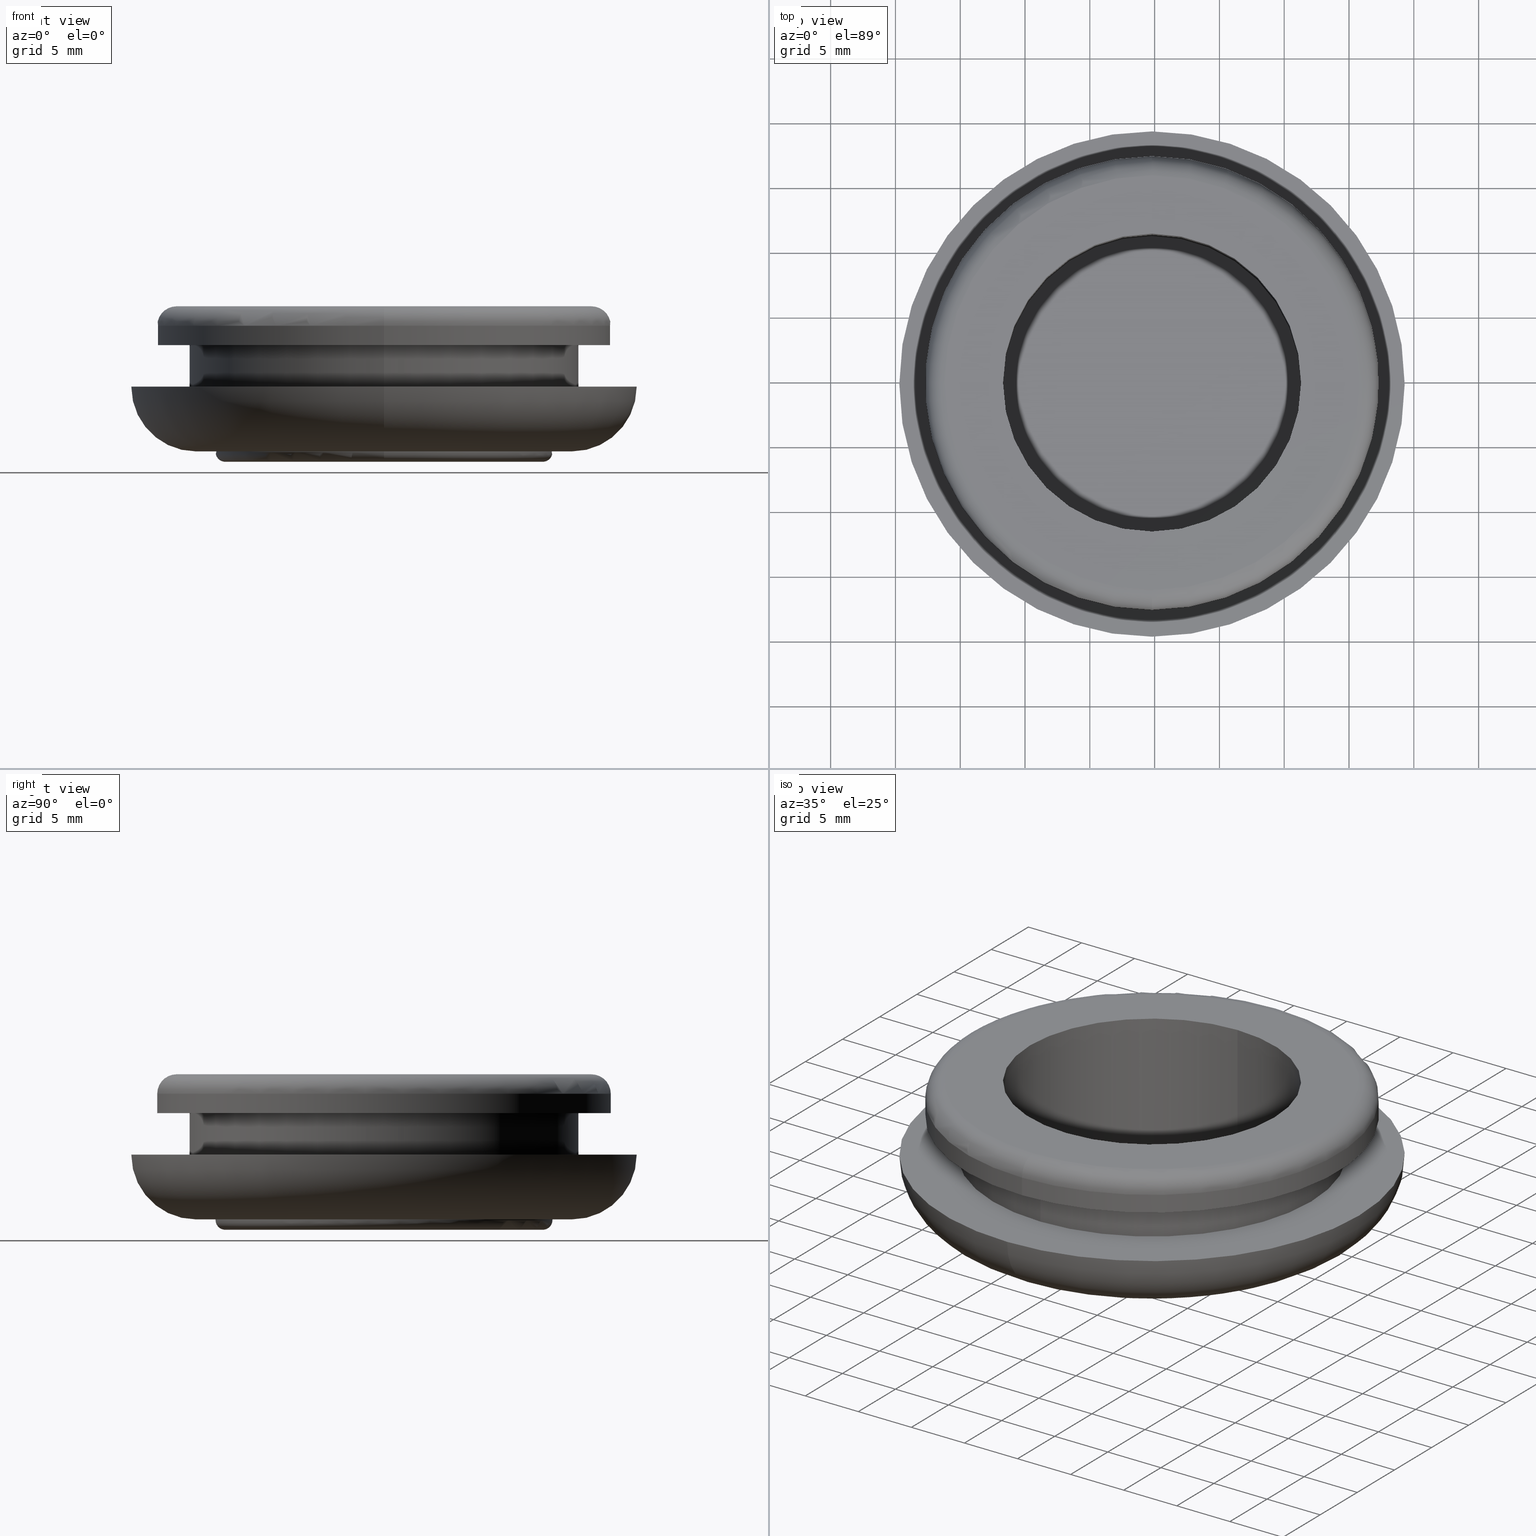
[diagram: canonical four-view strip — front | top / right | iso, engineering-drawing reading convention]
A machine part, canonical four-view strip (front | top / right | iso — engineering-drawing reading convention). The complete STEP part file that produces these views, byte-faithful:
ISO-10303-21;
HEADER;
FILE_DESCRIPTION (( 'STEP AP214' ),
    '1' );
FILE_NAME ('TM_MG_8.STEP',
    '2015-05-22T02:50:23',
    ( '' ),
    ( '' ),
    'SwSTEP 2.0',
    'SolidWorks 2015',
    '' );
FILE_SCHEMA (( 'AUTOMOTIVE_DESIGN' ));
ENDSEC;

DATA;
#1 = DIRECTION ( 'NONE',  ( 0.0000000000000000000, 0.0000000000000000000, -1.000000000000000000 ) ) ;
#2 = EDGE_CURVE ( 'NONE', #267, #573, #291, .T. ) ;
#3 = AXIS2_PLACEMENT_3D ( 'NONE', #133, #425, #193 ) ;
#4 = CIRCLE ( 'NONE', #501, 0.7500000000000006700 ) ;
#5 = ADVANCED_FACE ( 'NONE', ( #280, #88 ), #552, .T. ) ;
#6 = ORIENTED_EDGE ( 'NONE', *, *, #78, .T. ) ;
#7 = EDGE_CURVE ( 'NONE', #127, #531, #227, .T. ) ;
#8 = DIRECTION ( 'NONE',  ( 0.0000000000000000000, 0.0000000000000000000, -1.000000000000000000 ) ) ;
#9 = EDGE_CURVE ( 'NONE', #500, #596, #121, .T. ) ;
#10 = ADVANCED_FACE ( 'NONE', ( #368 ), #350, .T. ) ;
#11 = CARTESIAN_POINT ( 'NONE',  ( 0.0000000000000000000, 1.499999999999996700, -16.00000000000000000 ) ) ;
#12 = CARTESIAN_POINT ( 'NONE',  ( 0.0000000000000000000, 11.19999999999999800, -14.50000000000000000 ) ) ;
#13 = DIRECTION ( 'NONE',  ( 0.0000000000000000000, -1.000000000000000000, 0.0000000000000000000 ) ) ;
#14 = EDGE_CURVE ( 'NONE', #172, #536, #213, .T. ) ;
#15 = VECTOR ( 'NONE', #414, 1000.000000000000000 ) ;
#16 = CARTESIAN_POINT ( 'NONE',  ( 0.0000000000000000000, 11.25000000000000000, 0.0000000000000000000 ) ) ;
#17 = ORIENTED_EDGE ( 'NONE', *, *, #294, .F. ) ;
#18 = SHAPE_REPRESENTATION ( 'grommet', ( #511 ), #648 ) ;
#19 = EDGE_CURVE ( 'NONE', #353, #331, #603, .T. ) ;
#20 = AXIS2_PLACEMENT_3D ( 'NONE', #327, #370, #507 ) ;
#21 = DIRECTION ( 'NONE',  ( 0.0000000000000000000, -1.000000000000000000, 0.0000000000000000000 ) ) ;
#22 = ADVANCED_FACE ( 'NONE', ( #587, #74 ), #525, .T. ) ;
#23 = APPLICATION_CONTEXT ( 'automotive_design' ) ;
#24 = CYLINDRICAL_SURFACE ( 'NONE', #316, 11.50000000000000000 ) ;
#25 = EDGE_CURVE ( 'NONE', #338, #122, #198, .T. ) ;
#26 = EDGE_LOOP ( 'NONE', ( #153, #646 ) ) ;
#27 = UNCERTAINTY_MEASURE_WITH_UNIT (LENGTH_MEASURE( 1.000000000000000100E-005 ), #31, 'distance_accuracy_value', 'NONE');
#28 = EDGE_CURVE ( 'NONE', #122, #441, #456, .T. ) ;
#29 = STYLED_ITEM ( 'NONE', ( #628 ), #595 ) ;
#30 = PRODUCT_DEFINITION_CONTEXT ( 'detailed design', #189, 'design' ) ;
#31 =( LENGTH_UNIT ( ) NAMED_UNIT ( * ) SI_UNIT ( .MILLI., .METRE. ) );
#32 = CARTESIAN_POINT ( 'NONE',  ( 0.0000000000000000000, 12.69999999999999900, -13.00000000000000000 ) ) ;
#33 = SHAPE_DEFINITION_REPRESENTATION ( #629, #18 ) ;
#34 = FACE_OUTER_BOUND ( 'NONE', #26, .T. ) ;
#35 = EDGE_CURVE ( 'NONE', #199, #128, #337, .T. ) ;
#36 = ORIENTED_EDGE ( 'NONE', *, *, #39, .T. ) ;
#37 = AXIS2_PLACEMENT_3D ( 'NONE', #647, #569, #490 ) ;
#38 = CARTESIAN_POINT ( 'NONE',  ( 0.0000000000000000000, 0.0000000000000000000, 0.0000000000000000000 ) ) ;
#39 = EDGE_CURVE ( 'NONE', #359, #298, #55, .T. ) ;
#40 = SURFACE_SIDE_STYLE ('',( #117 ) ) ;
#41 = TOROIDAL_SURFACE ( 'NONE', #612, 14.50000000000000000, 4.999999999999999100 ) ;
#42 = CIRCLE ( 'NONE', #282, 1.500000000000001300 ) ;
#43 = EDGE_LOOP ( 'NONE', ( #192, #371, #315, #388 ) ) ;
#44 = EDGE_CURVE ( 'NONE', #128, #199, #449, .T. ) ;
#45 = AXIS2_PLACEMENT_3D ( 'NONE', #164, #150, #148 ) ;
#46 = EDGE_CURVE ( 'NONE', #596, #531, #572, .T. ) ;
#47 = PLANE ( 'NONE',  #434 ) ;
#48 = PLANE ( 'NONE',  #356 ) ;
#49 = ORIENTED_EDGE ( 'NONE', *, *, #81, .F. ) ;
#50 = PLANE ( 'NONE',  #197 ) ;
#51 = EDGE_CURVE ( 'NONE', #338, #460, #322, .T. ) ;
#52 = DIRECTION ( 'NONE',  ( 0.0000000000000000000, 0.0000000000000000000, 1.000000000000000000 ) ) ;
#53 = VECTOR ( 'NONE', #211, 1000.000000000000000 ) ;
#54 = ADVANCED_FACE ( 'NONE', ( #185 ), #24, .F. ) ;
#55 = CIRCLE ( 'NONE', #144, 17.50000000000000000 ) ;
#56 = VERTEX_POINT ( 'NONE', #57 ) ;
#57 = CARTESIAN_POINT ( 'NONE',  ( 0.0000000000000000000, 2.999999999999999100, -15.00000000000000000 ) ) ;
#58 = DIRECTION ( 'NONE',  ( 0.0000000000000000000, -1.000000000000000000, 0.0000000000000000000 ) ) ;
#59 = EDGE_CURVE ( 'NONE', #199, #353, #42, .T. ) ;
#60 = UNCERTAINTY_MEASURE_WITH_UNIT (LENGTH_MEASURE( 1.000000000000000100E-005 ), #203, 'distance_accuracy_value', 'NONE');
#61 = ORIENTED_EDGE ( 'NONE', *, *, #2, .F. ) ;
#62 =( NAMED_UNIT ( * ) PLANE_ANGLE_UNIT ( ) SI_UNIT ( $, .RADIAN. ) );
#63 = PRODUCT_DEFINITION_CONTEXT ( 'detailed design', #202, 'design' ) ;
#64 = EDGE_CURVE ( 'NONE', #573, #267, #304, .T. ) ;
#65 = PRODUCT ( 'grommet', 'grommet', '', ( #238 ) ) ;
#66 = PRESENTATION_LAYER_ASSIGNMENT (  '', '', ( #29 ) ) ;
#67 = EDGE_LOOP ( 'NONE', ( #413, #483, #562, #551 ) ) ;
#68 = VERTEX_POINT ( 'NONE', #461 ) ;
#69 = AXIS2_PLACEMENT_3D ( 'NONE', #218, #487, #52 ) ;
#70 = CARTESIAN_POINT ( 'NONE',  ( 0.0000000000000000000, 2.999999999999999100, -17.50000000000000000 ) ) ;
#71 =( NAMED_UNIT ( * ) SI_UNIT ( $, .STERADIAN. ) SOLID_ANGLE_UNIT ( ) );
#72 = EDGE_CURVE ( 'NONE', #127, #500, #435, .T. ) ;
#73 = TOROIDAL_SURFACE ( 'NONE', #217, 12.24999999999999600, 0.7499999999999997800 ) ;
#74 = FACE_OUTER_BOUND ( 'NONE', #351, .T. ) ;
#75 = ORIENTED_EDGE ( 'NONE', *, *, #157, .T. ) ;
#76 = CARTESIAN_POINT ( 'NONE',  ( 1.775737858763662000E-015, 6.200000000000000200, 14.50000000000000000 ) ) ;
#77 = DIRECTION ( 'NONE',  ( 0.0000000000000000000, -1.000000000000000000, 0.0000000000000000000 ) ) ;
#78 = EDGE_CURVE ( 'NONE', #406, #460, #171, .T. ) ;
#79 = AXIS2_PLACEMENT_3D ( 'NONE', #194, #166, #292 ) ;
#80 = PRESENTATION_STYLE_ASSIGNMENT (( #634 ) ) ;
#81 = EDGE_CURVE ( 'NONE', #128, #331, #424, .T. ) ;
#82 = ORIENTED_EDGE ( 'NONE', *, *, #46, .T. ) ;
#83 = CARTESIAN_POINT ( 'NONE',  ( 0.0000000000000000000, 10.69999999999999900, -11.50000000000000000 ) ) ;
#84 = DIRECTION ( 'NONE',  ( 0.0000000000000000000, 0.0000000000000000000, 1.000000000000000000 ) ) ;
#85 = DIRECTION ( 'NONE',  ( 0.0000000000000000000, 0.0000000000000000000, -1.000000000000000000 ) ) ;
#86 = FACE_OUTER_BOUND ( 'NONE', #67, .T. ) ;
#87 = EDGE_CURVE ( 'NONE', #56, #68, #534, .T. ) ;
#88 = FACE_BOUND ( 'NONE', #265, .T. ) ;
#89 = ORIENTED_EDGE ( 'NONE', *, *, #377, .T. ) ;
#90 = AXIS2_PLACEMENT_3D ( 'NONE', #313, #342, #499 ) ;
#91 = DIRECTION ( 'NONE',  ( 0.0000000000000000000, -1.000000000000000000, 0.0000000000000000000 ) ) ;
#92 = ORIENTED_EDGE ( 'NONE', *, *, #191, .T. ) ;
#93 = CARTESIAN_POINT ( 'NONE',  ( 0.0000000000000000000, 1.500000000000008200, 0.0000000000000000000 ) ) ;
#94 =( LENGTH_UNIT ( ) NAMED_UNIT ( * ) SI_UNIT ( .MILLI., .METRE. ) );
#95 = DIRECTION ( 'NONE',  ( 0.0000000000000000000, -1.000000000000000000, 0.0000000000000000000 ) ) ;
#96 = TOROIDAL_SURFACE ( 'NONE', #131, 16.00000000000000000, 1.500000000000000400 ) ;
#97 = ORIENTED_EDGE ( 'NONE', *, *, #39, .F. ) ;
#98 = EDGE_CURVE ( 'NONE', #430, #548, #288, .T. ) ;
#99 = DIRECTION ( 'NONE',  ( 0.0000000000000000000, -1.000000000000000000, 0.0000000000000000000 ) ) ;
#100 = MECHANICAL_DESIGN_GEOMETRIC_PRESENTATION_REPRESENTATION (  '', ( #29 ), #138 ) ;
#101 = CARTESIAN_POINT ( 'NONE',  ( 0.0000000000000000000, 11.25000000000000000, 0.0000000000000000000 ) ) ;
#102 = DIRECTION ( 'NONE',  ( 0.0000000000000000000, 0.0000000000000000000, -1.000000000000000000 ) ) ;
#103 = AXIS2_PLACEMENT_3D ( 'NONE', #431, #556, #564 ) ;
#104 = DIRECTION ( 'NONE',  ( 0.0000000000000000000, 0.0000000000000000000, -1.000000000000000000 ) ) ;
#105 = CIRCLE ( 'NONE', #187, 13.00000000000000000 ) ;
#106 = APPLICATION_PROTOCOL_DEFINITION ( 'draft international standard', 'automotive_design', 1998, #189 ) ;
#107 = EDGE_LOOP ( 'NONE', ( #438, #92, #328, #620 ) ) ;
#108 = CARTESIAN_POINT ( 'NONE',  ( 1.408343819019456200E-015, 10.69999999999999900, 11.50000000000000000 ) ) ;
#109 = ORIENTED_EDGE ( 'NONE', *, *, #25, .T. ) ;
#110 = DIRECTION ( 'NONE',  ( 0.0000000000000000000, 0.0000000000000000000, -1.000000000000000000 ) ) ;
#111 = DIRECTION ( 'NONE',  ( 1.000000000000000000, 0.0000000000000000000, 0.0000000000000000000 ) ) ;
#112 = CARTESIAN_POINT ( 'NONE',  ( 0.0000000000000000000, 6.200000000000000200, -14.50000000000000000 ) ) ;
#113 = ORIENTED_EDGE ( 'NONE', *, *, #46, .F. ) ;
#114 = CARTESIAN_POINT ( 'NONE',  ( 0.0000000000000000000, 12.69999999999999900, 0.0000000000000000000 ) ) ;
#115 = AXIS2_PLACEMENT_3D ( 'NONE', #114, #374, #200 ) ;
#116 = CARTESIAN_POINT ( 'NONE',  ( 0.0000000000000000000, 12.69999999999999900, 0.0000000000000000000 ) ) ;
#117 = SURFACE_STYLE_FILL_AREA ( #401 ) ;
#118 = CYLINDRICAL_SURFACE ( 'NONE', #90, 11.49999999999999800 ) ;
#119 = ORIENTED_EDGE ( 'NONE', *, *, #377, .F. ) ;
#120 = EDGE_CURVE ( 'NONE', #338, #493, #4, .T. ) ;
#121 = LINE ( 'NONE', #318, #472 ) ;
#122 = VERTEX_POINT ( 'NONE', #528 ) ;
#123 = DIRECTION ( 'NONE',  ( 0.0000000000000000000, -1.000000000000000000, 0.0000000000000000000 ) ) ;
#124 = DIRECTION ( 'NONE',  ( 0.0000000000000000000, -1.000000000000000000, 0.0000000000000000000 ) ) ;
#125 = DIRECTION ( 'NONE',  ( 0.0000000000000000000, -1.000000000000000000, 0.0000000000000000000 ) ) ;
#126 = TOROIDAL_SURFACE ( 'NONE', #254, 12.24999999999999600, 0.7499999999999997800 ) ;
#127 = VERTEX_POINT ( 'NONE', #108 ) ;
#128 = VERTEX_POINT ( 'NONE', #469 ) ;
#129 = CARTESIAN_POINT ( 'NONE',  ( 2.081899558550500300E-015, 11.19999999999999800, 14.50000000000000000 ) ) ;
#130 = ORIENTED_EDGE ( 'NONE', *, *, #523, .T. ) ;
#131 = AXIS2_PLACEMENT_3D ( 'NONE', #383, #332, #1 ) ;
#132 = CARTESIAN_POINT ( 'NONE',  ( 1.408343819019456200E-015, -1.734723475976807100E-015, 11.50000000000000000 ) ) ;
#133 = CARTESIAN_POINT ( 'NONE',  ( 0.0000000000000000000, 6.200000000000000200, 0.0000000000000000000 ) ) ;
#134 = CIRCLE ( 'NONE', #570, 11.50000000000000000 ) ;
#135 = ORIENTED_EDGE ( 'NONE', *, *, #290, .F. ) ;
#136 = CARTESIAN_POINT ( 'NONE',  ( 0.0000000000000000000, 11.25000000000000000, -13.00000000000000000 ) ) ;
#137 = ORIENTED_EDGE ( 'NONE', *, *, #98, .F. ) ;
#138 =( GEOMETRIC_REPRESENTATION_CONTEXT ( 3 ) GLOBAL_UNCERTAINTY_ASSIGNED_CONTEXT ( ( #642 ) ) GLOBAL_UNIT_ASSIGNED_CONTEXT ( ( #409, #594, #631 ) ) REPRESENTATION_CONTEXT ( 'NONE', 'WORKASPACE' ) );
#139 = ADVANCED_FACE ( 'NONE', ( #410, #152 ), #544, .T. ) ;
#140 = DIRECTION ( 'NONE',  ( 0.0000000000000000000, 0.0000000000000000000, -1.000000000000000000 ) ) ;
#141 = APPLICATION_CONTEXT ( 'automotive_design' ) ;
#142 = EDGE_CURVE ( 'NONE', #460, #406, #134, .T. ) ;
#143 = CYLINDRICAL_SURFACE ( 'NONE', #563, 17.50000000000000000 ) ;
#144 = AXIS2_PLACEMENT_3D ( 'NONE', #423, #575, #516 ) ;
#145 = ORIENTED_EDGE ( 'NONE', *, *, #120, .T. ) ;
#146 = EDGE_CURVE ( 'NONE', #548, #430, #271, .T. ) ;
#147 = APPLICATION_PROTOCOL_DEFINITION ( 'draft international standard', 'automotive_design', 1998, #141 ) ;
#148 = DIRECTION ( 'NONE',  ( 0.0000000000000000000, 0.0000000000000000000, -1.000000000000000000 ) ) ;
#149 = CARTESIAN_POINT ( 'NONE',  ( 0.0000000000000000000, 10.69999999999999900, 0.0000000000000000000 ) ) ;
#150 = DIRECTION ( 'NONE',  ( 0.0000000000000000000, -1.000000000000000000, 0.0000000000000000000 ) ) ;
#151 = DIRECTION ( 'NONE',  ( 0.0000000000000000000, 0.0000000000000000000, -1.000000000000000000 ) ) ;
#152 = FACE_OUTER_BOUND ( 'NONE', #639, .T. ) ;
#153 = ORIENTED_EDGE ( 'NONE', *, *, #78, .F. ) ;
#154 = AXIS2_PLACEMENT_3D ( 'NONE', #561, #621, #555 ) ;
#155 = ADVANCED_FACE ( 'NONE', ( #519 ), #118, .F. ) ;
#156 = CARTESIAN_POINT ( 'NONE',  ( 0.0000000000000000000, 12.69999999999999900, 0.0000000000000000000 ) ) ;
#157 = EDGE_CURVE ( 'NONE', #441, #267, #508, .T. ) ;
#158 = CARTESIAN_POINT ( 'NONE',  ( 0.0000000000000000000, 12.69999999999999900, -11.49999999999999800 ) ) ;
#159 = CARTESIAN_POINT ( 'NONE',  ( 1.836970198721029600E-015, 12.69999999999999900, 15.00000000000000000 ) ) ;
#160 = CARTESIAN_POINT ( 'NONE',  ( 1.592040838891559100E-015, 11.25000000000000000, 13.00000000000000000 ) ) ;
#161 = CONTEXT_DEPENDENT_SHAPE_REPRESENTATION ( #398, #382 ) ;
#162 = CYLINDRICAL_SURFACE ( 'NONE', #489, 13.00000000000000000 ) ;
#163 = ORIENTED_EDGE ( 'NONE', *, *, #98, .T. ) ;
#164 = CARTESIAN_POINT ( 'NONE',  ( 0.0000000000000000000, 2.999999999999999100, 0.0000000000000000000 ) ) ;
#165 = DIRECTION ( 'NONE',  ( 0.0000000000000000000, -1.000000000000000000, 0.0000000000000000000 ) ) ;
#166 = DIRECTION ( 'NONE',  ( 0.0000000000000000000, -1.000000000000000000, 0.0000000000000000000 ) ) ;
#167 = ORIENTED_EDGE ( 'NONE', *, *, #19, .T. ) ;
#168 = AXIS2_PLACEMENT_3D ( 'NONE', #399, #13, #110 ) ;
#169 = CARTESIAN_POINT ( 'NONE',  ( 0.0000000000000000000, 1.499999999999996700, 0.0000000000000000000 ) ) ;
#170 = CYLINDRICAL_SURFACE ( 'NONE', #576, 13.00000000000000000 ) ;
#171 = CIRCLE ( 'NONE', #386, 11.50000000000000000 ) ;
#172 = VERTEX_POINT ( 'NONE', #354 ) ;
#173 = CARTESIAN_POINT ( 'NONE',  ( 2.051283388571816100E-015, -3.469446951953614200E-015, 15.99999999999998900 ) ) ;
#174 = FILL_AREA_STYLE_COLOUR ( '', #253 ) ;
#175 = SHAPE_DEFINITION_REPRESENTATION ( #357, #249 ) ;
#176 = VECTOR ( 'NONE', #223, 1000.000000000000000 ) ;
#177 = EDGE_LOOP ( 'NONE', ( #317, #179, #417, #473 ) ) ;
#178 = AXIS2_PLACEMENT_3D ( 'NONE', #93, #466, #521 ) ;
#179 = ORIENTED_EDGE ( 'NONE', *, *, #464, .T. ) ;
#180 = ORIENTED_EDGE ( 'NONE', *, *, #330, .F. ) ;
#181 = ADVANCED_FACE ( 'NONE', ( #255 ), #630, .T. ) ;
#182 = EDGE_CURVE ( 'NONE', #298, #199, #378, .T. ) ;
#183 =( NAMED_UNIT ( * ) PLANE_ANGLE_UNIT ( ) SI_UNIT ( $, .RADIAN. ) );
#184 = FACE_OUTER_BOUND ( 'NONE', #228, .T. ) ;
#185 = FACE_OUTER_BOUND ( 'NONE', #607, .T. ) ;
#186 = ORIENTED_EDGE ( 'NONE', *, *, #361, .F. ) ;
#187 = AXIS2_PLACEMENT_3D ( 'NONE', #615, #524, #231 ) ;
#188 = ADVANCED_FACE ( 'NONE', ( #645 ), #96, .T. ) ;
#189 = APPLICATION_CONTEXT ( 'automotive_design' ) ;
#190 = ADVANCED_FACE ( 'NONE', ( #358 ), #50, .T. ) ;
#191 = EDGE_CURVE ( 'NONE', #298, #359, #492, .T. ) ;
#192 = ORIENTED_EDGE ( 'NONE', *, *, #59, .F. ) ;
#193 = DIRECTION ( 'NONE',  ( 0.0000000000000000000, 0.0000000000000000000, -1.000000000000000000 ) ) ;
#194 = CARTESIAN_POINT ( 'NONE',  ( 0.0000000000000000000, -1.734723475976807100E-015, 0.0000000000000000000 ) ) ;
#195 = CARTESIAN_POINT ( 'NONE',  ( 1.592040838891559100E-015, 11.19999999999999900, 13.00000000000000000 ) ) ;
#196 = LINE ( 'NONE', #159, #585 ) ;
#197 = AXIS2_PLACEMENT_3D ( 'NONE', #372, #95, #560 ) ;
#198 = CIRCLE ( 'NONE', #650, 11.49999999999999600 ) ;
#199 = VERTEX_POINT ( 'NONE', #609 ) ;
#200 = DIRECTION ( 'NONE',  ( 0.0000000000000000000, 0.0000000000000000000, -1.000000000000000000 ) ) ;
#201 = DIRECTION ( 'NONE',  ( 0.0000000000000000000, 0.0000000000000000000, -1.000000000000000000 ) ) ;
#202 = APPLICATION_CONTEXT ( 'automotive_design' ) ;
#203 =( LENGTH_UNIT ( ) NAMED_UNIT ( * ) SI_UNIT ( .MILLI., .METRE. ) );
#204 = DIRECTION ( 'NONE',  ( 0.0000000000000000000, -1.000000000000000000, 0.0000000000000000000 ) ) ;
#205 = EDGE_LOOP ( 'NONE', ( #632, #145, #119, #486 ) ) ;
#206 = ORIENTED_EDGE ( 'NONE', *, *, #2, .T. ) ;
#207 = EDGE_LOOP ( 'NONE', ( #452, #505, #411, #17 ) ) ;
#208 = DIRECTION ( 'NONE',  ( 1.000000000000000000, 0.0000000000000000000, 0.0000000000000000000 ) ) ;
#209 = AXIS2_PLACEMENT_3D ( 'NONE', #583, #236, #362 ) ;
#210 = CARTESIAN_POINT ( 'NONE',  ( 0.0000000000000000000, 0.0000000000000000000, 0.0000000000000000000 ) ) ;
#211 = DIRECTION ( 'NONE',  ( 0.0000000000000000000, -1.000000000000000000, 0.0000000000000000000 ) ) ;
#212 = FACE_OUTER_BOUND ( 'NONE', #177, .T. ) ;
#213 = CIRCLE ( 'NONE', #484, 15.00000000000000000 ) ;
#214 = DIRECTION ( 'NONE',  ( 0.0000000000000000000, 0.0000000000000000000, 1.000000000000000000 ) ) ;
#215 = MANIFOLD_SOLID_BREP ( '��]1', #588 ) ;
#216 = ORIENTED_EDGE ( 'NONE', *, *, #290, .T. ) ;
#217 = AXIS2_PLACEMENT_3D ( 'NONE', #101, #99, #287 ) ;
#218 = CARTESIAN_POINT ( 'NONE',  ( 0.0000000000000000000, 11.25000000000000000, -12.24999999999999600 ) ) ;
#219 = CIRCLE ( 'NONE', #459, 4.999999999999999100 ) ;
#220 = ORIENTED_EDGE ( 'NONE', *, *, #633, .T. ) ;
#221 = EDGE_CURVE ( 'NONE', #172, #56, #312, .T. ) ;
#222 = ORIENTED_EDGE ( 'NONE', *, *, #191, .F. ) ;
#223 = DIRECTION ( 'NONE',  ( 0.0000000000000000000, -1.000000000000000000, 0.0000000000000000000 ) ) ;
#224 = DIRECTION ( 'NONE',  ( 0.0000000000000000000, 0.0000000000000000000, 1.000000000000000000 ) ) ;
#225 = CARTESIAN_POINT ( 'NONE',  ( 11.50000000000000000, -2.573917133304267300E-015, 0.0000000000000000000 ) ) ;
#226 = FACE_OUTER_BOUND ( 'NONE', #400, .T. ) ;
#227 = LINE ( 'NONE', #251, #296 ) ;
#228 = EDGE_LOOP ( 'NONE', ( #355, #163, #324, #135 ) ) ;
#229 = STYLED_ITEM ( 'NONE', ( #80 ), #215 ) ;
#230 = ORIENTED_EDGE ( 'NONE', *, *, #120, .F. ) ;
#231 = DIRECTION ( 'NONE',  ( 0.0000000000000000000, 0.0000000000000000000, -1.000000000000000000 ) ) ;
#232 = ADVANCED_FACE ( 'NONE', ( #34 ), #47, .T. ) ;
#233 = CARTESIAN_POINT ( 'NONE',  ( 0.0000000000000000000, 12.69999999999999900, 0.0000000000000000000 ) ) ;
#234 =( NAMED_UNIT ( * ) PLANE_ANGLE_UNIT ( ) SI_UNIT ( $, .RADIAN. ) );
#235 = DIRECTION ( 'NONE',  ( 0.0000000000000000000, 0.0000000000000000000, -1.000000000000000000 ) ) ;
#236 = DIRECTION ( 'NONE',  ( 0.0000000000000000000, -1.000000000000000000, 0.0000000000000000000 ) ) ;
#237 = CARTESIAN_POINT ( 'NONE',  ( 1.408343819019456000E-015, 11.25000000000000000, 11.49999999999999600 ) ) ;
#238 = PRODUCT_CONTEXT ( 'NONE', #23, 'mechanical' ) ;
#239 = VECTOR ( 'NONE', #323, 1000.000000000000000 ) ;
#240 = ORIENTED_EDGE ( 'NONE', *, *, #475, .T. ) ;
#241 = AXIS2_PLACEMENT_3D ( 'NONE', #622, #602, #111 ) ;
#242 = DIRECTION ( 'NONE',  ( 0.0000000000000000000, -1.000000000000000000, 0.0000000000000000000 ) ) ;
#243 = PRODUCT ( 'TM_MG_8', 'TM_MG_8', '', ( #275 ) ) ;
#244 = ADVANCED_FACE ( 'NONE', ( #440 ), #162, .T. ) ;
#245 = DIRECTION ( 'NONE',  ( 0.0000000000000000000, 0.0000000000000000000, 1.000000000000000000 ) ) ;
#246 = AXIS2_PLACEMENT_3D ( 'NONE', #314, #123, #504 ) ;
#247 = CIRCLE ( 'NONE', #154, 15.99999999999998900 ) ;
#248 = ORIENTED_EDGE ( 'NONE', *, *, #403, .F. ) ;
#249 = SHAPE_REPRESENTATION ( 'TM_MG_8', ( #344, #274 ), #311 ) ;
#250 =( NAMED_UNIT ( * ) SI_UNIT ( $, .STERADIAN. ) SOLID_ANGLE_UNIT ( ) );
#251 = CARTESIAN_POINT ( 'NONE',  ( 1.408343819019456200E-015, 12.69999999999999900, 11.50000000000000000 ) ) ;
#252 = DIRECTION ( 'NONE',  ( 0.0000000000000000000, -1.000000000000000000, 0.0000000000000000000 ) ) ;
#253 = COLOUR_RGB ( '',0.7921568627450980000, 0.8196078431372548800, 0.9333333333333333500 ) ;
#254 = AXIS2_PLACEMENT_3D ( 'NONE', #546, #599, #617 ) ;
#255 = FACE_OUTER_BOUND ( 'NONE', #207, .T. ) ;
#256 = ORIENTED_EDGE ( 'NONE', *, *, #72, .T. ) ;
#257 = DIRECTION ( 'NONE',  ( 0.0000000000000000000, 0.0000000000000000000, -1.000000000000000000 ) ) ;
#258 = EDGE_CURVE ( 'NONE', #430, #457, #219, .T. ) ;
#259 = EDGE_LOOP ( 'NONE', ( #230, #109, #272, #334 ) ) ;
#260 = DIRECTION ( 'NONE',  ( 0.0000000000000000000, 0.0000000000000000000, -1.000000000000000000 ) ) ;
#261 = EDGE_CURVE ( 'NONE', #359, #128, #297, .T. ) ;
#262 = LINE ( 'NONE', #649, #366 ) ;
#263 = DIRECTION ( 'NONE',  ( 0.0000000000000000000, 0.0000000000000000000, -1.000000000000000000 ) ) ;
#264 = EDGE_LOOP ( 'NONE', ( #89, #465, #61, #568 ) ) ;
#265 = EDGE_LOOP ( 'NONE', ( #113, #180 ) ) ;
#266 = CARTESIAN_POINT ( 'NONE',  ( 0.0000000000000000000, 6.200000000000000200, 0.0000000000000000000 ) ) ;
#267 = VERTEX_POINT ( 'NONE', #364 ) ;
#268 = PRESENTATION_LAYER_ASSIGNMENT (  '', '', ( #229 ) ) ;
#269 = CARTESIAN_POINT ( 'NONE',  ( 1.408343819019456400E-015, 11.19999999999999900, 11.50000000000000000 ) ) ;
#270 = ADVANCED_FACE ( 'NONE', ( #429 ), #143, .T. ) ;
#271 = CIRCLE ( 'NONE', #640, 14.50000000000000000 ) ;
#272 = ORIENTED_EDGE ( 'NONE', *, *, #28, .T. ) ;
#273 = DIRECTION ( 'NONE',  ( -1.000000000000000000, -0.0000000000000000000, -0.0000000000000000000 ) ) ;
#274 = AXIS2_PLACEMENT_3D ( 'NONE', #627, #341, #300 ) ;
#275 = PRODUCT_CONTEXT ( 'NONE', #141, 'mechanical' ) ;
#276 = ADVANCED_FACE ( 'NONE', ( #416 ), #514, .T. ) ;
#277 = DIRECTION ( 'NONE',  ( 0.0000000000000000000, -0.0000000000000000000, -1.000000000000000000 ) ) ;
#278 = CIRCLE ( 'NONE', #518, 19.50000000000000000 ) ;
#279 = EDGE_CURVE ( 'NONE', #493, #441, #651, .T. ) ;
#280 = FACE_OUTER_BOUND ( 'NONE', #547, .T. ) ;
#281 = ORIENTED_EDGE ( 'NONE', *, *, #72, .F. ) ;
#282 = AXIS2_PLACEMENT_3D ( 'NONE', #326, #384, #625 ) ;
#283 = DIRECTION ( 'NONE',  ( 0.0000000000000000000, -1.000000000000000000, 0.0000000000000000000 ) ) ;
#284 = DIRECTION ( 'NONE',  ( 1.000000000000000000, 0.0000000000000000000, 0.0000000000000000000 ) ) ;
#285 = ORIENTED_EDGE ( 'NONE', *, *, #261, .F. ) ;
#286 = APPLICATION_PROTOCOL_DEFINITION ( 'draft international standard', 'automotive_design', 1998, #202 ) ;
#287 = DIRECTION ( 'NONE',  ( 0.0000000000000000000, 0.0000000000000000000, -1.000000000000000000 ) ) ;
#288 = CIRCLE ( 'NONE', #470, 14.50000000000000000 ) ;
#289 = EDGE_LOOP ( 'NONE', ( #248, #380, #75, #293 ) ) ;
#290 = EDGE_CURVE ( 'NONE', #457, #379, #278, .T. ) ;
#291 = CIRCLE ( 'NONE', #428, 13.00000000000000000 ) ;
#292 = DIRECTION ( 'NONE',  ( 0.0000000000000000000, 0.0000000000000000000, -1.000000000000000000 ) ) ;
#293 = ORIENTED_EDGE ( 'NONE', *, *, #64, .F. ) ;
#294 = EDGE_CURVE ( 'NONE', #548, #379, #542, .T. ) ;
#295 = CARTESIAN_POINT ( 'NONE',  ( 15.00000000000000000, 6.200000000000000200, 0.0000000000000000000 ) ) ;
#296 = VECTOR ( 'NONE', #468, 1000.000000000000000 ) ;
#297 = LINE ( 'NONE', #376, #15 ) ;
#298 = VERTEX_POINT ( 'NONE', #340 ) ;
#299 = CARTESIAN_POINT ( 'NONE',  ( 0.0000000000000000000, 11.19999999999999900, 0.0000000000000000000 ) ) ;
#300 = DIRECTION ( 'NONE',  ( 1.000000000000000000, 0.0000000000000000000, 0.0000000000000000000 ) ) ;
#301 = ORIENTED_EDGE ( 'NONE', *, *, #51, .F. ) ;
#302 = MECHANICAL_DESIGN_GEOMETRIC_PRESENTATION_REPRESENTATION (  '', ( #229 ), #339 ) ;
#303 = CIRCLE ( 'NONE', #538, 11.50000000000000000 ) ;
#304 = CIRCLE ( 'NONE', #246, 13.00000000000000000 ) ;
#305 = EDGE_LOOP ( 'NONE', ( #301, #520, #240, #6 ) ) ;
#306 = DIRECTION ( 'NONE',  ( 0.0000000000000000000, 0.0000000000000000000, -1.000000000000000000 ) ) ;
#307 = ORIENTED_EDGE ( 'NONE', *, *, #64, .T. ) ;
#308 = CARTESIAN_POINT ( 'NONE',  ( 0.0000000000000000000, 11.19999999999999900, 0.0000000000000000000 ) ) ;
#309 = CARTESIAN_POINT ( 'NONE',  ( 0.0000000000000000000, 6.200000000000000200, -19.50000000000000000 ) ) ;
#310 = DIRECTION ( 'NONE',  ( 0.0000000000000000000, -1.000000000000000000, 0.0000000000000000000 ) ) ;
#311 =( GEOMETRIC_REPRESENTATION_CONTEXT ( 3 ) GLOBAL_UNCERTAINTY_ASSIGNED_CONTEXT ( ( #27 ) ) GLOBAL_UNIT_ASSIGNED_CONTEXT ( ( #31, #183, #250 ) ) REPRESENTATION_CONTEXT ( 'NONE', 'WORKASPACE' ) );
#312 = LINE ( 'NONE', #352, #176 ) ;
#313 = CARTESIAN_POINT ( 'NONE',  ( 0.0000000000000000000, 12.69999999999999900, 0.0000000000000000000 ) ) ;
#314 = CARTESIAN_POINT ( 'NONE',  ( 0.0000000000000000000, 11.19999999999999900, 0.0000000000000000000 ) ) ;
#315 = ORIENTED_EDGE ( 'NONE', *, *, #81, .T. ) ;
#316 = AXIS2_PLACEMENT_3D ( 'NONE', #373, #448, #584 ) ;
#317 = ORIENTED_EDGE ( 'NONE', *, *, #14, .T. ) ;
#318 = CARTESIAN_POINT ( 'NONE',  ( 0.0000000000000000000, 12.69999999999999900, -11.50000000000000000 ) ) ;
#319 = DIRECTION ( 'NONE',  ( 0.0000000000000000000, -1.000000000000000000, 0.0000000000000000000 ) ) ;
#320 = EDGE_CURVE ( 'NONE', #379, #457, #527, .T. ) ;
#321 = CYLINDRICAL_SURFACE ( 'NONE', #479, 11.49999999999999800 ) ;
#322 = LINE ( 'NONE', #608, #559 ) ;
#323 = DIRECTION ( 'NONE',  ( 0.0000000000000000000, -1.000000000000000000, 0.0000000000000000000 ) ) ;
#324 = ORIENTED_EDGE ( 'NONE', *, *, #294, .T. ) ;
#325 = ADVANCED_FACE ( 'NONE', ( #405 ), #385, .T. ) ;
#326 = CARTESIAN_POINT ( 'NONE',  ( 1.959434878635765100E-015, 1.499999999999996700, 16.00000000000000000 ) ) ;
#327 = CARTESIAN_POINT ( 'NONE',  ( 0.0000000000000000000, 6.200000000000000200, 0.0000000000000000000 ) ) ;
#328 = ORIENTED_EDGE ( 'NONE', *, *, #261, .T. ) ;
#329 = AXIS2_PLACEMENT_3D ( 'NONE', #598, #553, #550 ) ;
#330 = EDGE_CURVE ( 'NONE', #531, #596, #497, .T. ) ;
#331 = VERTEX_POINT ( 'NONE', #389 ) ;
#332 = DIRECTION ( 'NONE',  ( 0.0000000000000000000, -1.000000000000000000, 0.0000000000000000000 ) ) ;
#333 = EDGE_CURVE ( 'NONE', #68, #56, #636, .T. ) ;
#334 = ORIENTED_EDGE ( 'NONE', *, *, #279, .F. ) ;
#335 = CARTESIAN_POINT ( 'NONE',  ( 0.0000000000000000000, 2.999999999999999100, 0.0000000000000000000 ) ) ;
#336 = CIRCLE ( 'NONE', #451, 11.49999999999999600 ) ;
#337 = CIRCLE ( 'NONE', #103, 17.50000000000000000 ) ;
#338 = VERTEX_POINT ( 'NONE', #237 ) ;
#339 =( GEOMETRIC_REPRESENTATION_CONTEXT ( 3 ) GLOBAL_UNCERTAINTY_ASSIGNED_CONTEXT ( ( #60 ) ) GLOBAL_UNIT_ASSIGNED_CONTEXT ( ( #203, #62, #71 ) ) REPRESENTATION_CONTEXT ( 'NONE', 'WORKASPACE' ) );
#340 = CARTESIAN_POINT ( 'NONE',  ( 2.143131898507868200E-015, 2.999999999999999100, 17.50000000000000000 ) ) ;
#341 = DIRECTION ( 'NONE',  ( 0.0000000000000000000, 1.000000000000000000, 1.047444401652940000E-014 ) ) ;
#342 = DIRECTION ( 'NONE',  ( 0.0000000000000000000, -1.000000000000000000, 0.0000000000000000000 ) ) ;
#343 = EDGE_LOOP ( 'NONE', ( #582, #426 ) ) ;
#344 = AXIS2_PLACEMENT_3D ( 'NONE', #38, #224, #208 ) ;
#345 = CARTESIAN_POINT ( 'NONE',  ( 1.836970198721029600E-015, 6.200000000000000200, 15.00000000000000000 ) ) ;
#346 = DIRECTION ( 'NONE',  ( 0.0000000000000000000, -1.000000000000000000, 0.0000000000000000000 ) ) ;
#347 = AXIS2_PLACEMENT_3D ( 'NONE', #477, #539, #85 ) ;
#348 = CARTESIAN_POINT ( 'NONE',  ( 0.0000000000000000000, 6.200000000000000200, 0.0000000000000000000 ) ) ;
#349 = FACE_OUTER_BOUND ( 'NONE', #259, .T. ) ;
#350 = TOROIDAL_SURFACE ( 'NONE', #543, 16.00000000000000000, 1.500000000000000400 ) ;
#351 = EDGE_LOOP ( 'NONE', ( #97, #222 ) ) ;
#352 = CARTESIAN_POINT ( 'NONE',  ( 0.0000000000000000000, 12.69999999999999900, -15.00000000000000000 ) ) ;
#353 = VERTEX_POINT ( 'NONE', #173 ) ;
#354 = CARTESIAN_POINT ( 'NONE',  ( 0.0000000000000000000, 6.200000000000000200, -15.00000000000000000 ) ) ;
#355 = ORIENTED_EDGE ( 'NONE', *, *, #258, .F. ) ;
#356 = AXIS2_PLACEMENT_3D ( 'NONE', #295, #574, #277 ) ;
#357 = PRODUCT_DEFINITION_SHAPE ( 'NONE', 'NONE',  #442 ) ;
#358 = FACE_OUTER_BOUND ( 'NONE', #592, .T. ) ;
#359 = VERTEX_POINT ( 'NONE', #70 ) ;
#360 = DIRECTION ( 'NONE',  ( 0.0000000000000000000, 0.0000000000000000000, -1.000000000000000000 ) ) ;
#361 = EDGE_CURVE ( 'NONE', #331, #353, #247, .T. ) ;
#362 = DIRECTION ( 'NONE',  ( 0.0000000000000000000, 0.0000000000000000000, -1.000000000000000000 ) ) ;
#363 = ORIENTED_EDGE ( 'NONE', *, *, #464, .F. ) ;
#364 = CARTESIAN_POINT ( 'NONE',  ( 0.0000000000000000000, 11.19999999999999900, -13.00000000000000000 ) ) ;
#365 = DIRECTION ( 'NONE',  ( 1.000000000000000000, 0.0000000000000000000, -1.224646799147353200E-016 ) ) ;
#366 = VECTOR ( 'NONE', #77, 1000.000000000000000 ) ;
#367 = DIRECTION ( 'NONE',  ( -0.0000000000000000000, 1.000000000000000000, 0.0000000000000000000 ) ) ;
#368 = FACE_OUTER_BOUND ( 'NONE', #43, .T. ) ;
#369 = EDGE_LOOP ( 'NONE', ( #498, #216 ) ) ;
#370 = DIRECTION ( 'NONE',  ( 0.0000000000000000000, -1.000000000000000000, 0.0000000000000000000 ) ) ;
#371 = ORIENTED_EDGE ( 'NONE', *, *, #35, .T. ) ;
#372 = CARTESIAN_POINT ( 'NONE',  ( 0.0000000000000000000, 10.69999999999999900, 0.0000000000000000000 ) ) ;
#373 = CARTESIAN_POINT ( 'NONE',  ( 0.0000000000000000000, 12.69999999999999900, 0.0000000000000000000 ) ) ;
#374 = DIRECTION ( 'NONE',  ( 0.0000000000000000000, -1.000000000000000000, 0.0000000000000000000 ) ) ;
#375 = CARTESIAN_POINT ( 'NONE',  ( 2.143131898507868200E-015, 12.69999999999999900, 17.50000000000000000 ) ) ;
#376 = CARTESIAN_POINT ( 'NONE',  ( 0.0000000000000000000, 12.69999999999999900, -17.50000000000000000 ) ) ;
#377 = EDGE_CURVE ( 'NONE', #441, #493, #105, .T. ) ;
#378 = LINE ( 'NONE', #375, #239 ) ;
#379 = VERTEX_POINT ( 'NONE', #309 ) ;
#380 = ORIENTED_EDGE ( 'NONE', *, *, #279, .T. ) ;
#381 = PRODUCT_DEFINITION ( 'UNKNOWN', '', #526, #63 ) ;
#382 = PRODUCT_DEFINITION_SHAPE ( 'NONE', 'NONE',  #653 ) ;
#383 = CARTESIAN_POINT ( 'NONE',  ( 0.0000000000000000000, 1.499999999999996700, 0.0000000000000000000 ) ) ;
#384 = DIRECTION ( 'NONE',  ( 1.000000000000000000, 0.0000000000000000000, -1.224646799147353200E-016 ) ) ;
#385 = CYLINDRICAL_SURFACE ( 'NONE', #115, 17.50000000000000000 ) ;
#386 = AXIS2_PLACEMENT_3D ( 'NONE', #299, #392, #257 ) ;
#387 = ORIENTED_EDGE ( 'NONE', *, *, #633, .F. ) ;
#388 = ORIENTED_EDGE ( 'NONE', *, *, #19, .F. ) ;
#389 = CARTESIAN_POINT ( 'NONE',  ( 0.0000000000000000000, -3.469446951953614200E-015, -15.99999999999998900 ) ) ;
#390 = ADVANCED_FACE ( 'NONE', ( #618 ), #126, .T. ) ;
#391 = CARTESIAN_POINT ( 'NONE',  ( 0.0000000000000000000, 11.19999999999999900, 0.0000000000000000000 ) ) ;
#392 = DIRECTION ( 'NONE',  ( 0.0000000000000000000, -1.000000000000000000, 0.0000000000000000000 ) ) ;
#393 = ADVANCED_FACE ( 'NONE', ( #226 ), #600, .F. ) ;
#394 = VECTOR ( 'NONE', #476, 1000.000000000000000 ) ;
#395 = ADVANCED_FACE ( 'NONE', ( #485, #471 ), #48, .T. ) ;
#396 = ORIENTED_EDGE ( 'NONE', *, *, #221, .T. ) ;
#397 = AXIS2_PLACEMENT_3D ( 'NONE', #644, #614, #151 ) ;
#398 =( REPRESENTATION_RELATIONSHIP ('NONE','NONE', #249, #18 ) REPRESENTATION_RELATIONSHIP_WITH_TRANSFORMATION ( #540 )SHAPE_REPRESENTATION_RELATIONSHIP( ) );
#399 = CARTESIAN_POINT ( 'NONE',  ( 0.0000000000000000000, 2.999999999999999100, 0.0000000000000000000 ) ) ;
#400 = EDGE_LOOP ( 'NONE', ( #281, #419, #494, #605 ) ) ;
#401 = FILL_AREA_STYLE ('',( #174 ) ) ;
#402 = DIRECTION ( 'NONE',  ( 1.000000000000000000, 0.0000000000000000000, -1.224646799147353200E-016 ) ) ;
#403 = EDGE_CURVE ( 'NONE', #493, #573, #262, .T. ) ;
#404 = CARTESIAN_POINT ( 'NONE',  ( 0.0000000000000000000, 12.69999999999999900, 0.0000000000000000000 ) ) ;
#405 = FACE_OUTER_BOUND ( 'NONE', #437, .T. ) ;
#406 = VERTEX_POINT ( 'NONE', #638 ) ;
#407 = AXIS2_PLACEMENT_3D ( 'NONE', #408, #58, #235 ) ;
#408 = CARTESIAN_POINT ( 'NONE',  ( 0.0000000000000000000, 11.25000000000000000, 0.0000000000000000000 ) ) ;
#409 =( LENGTH_UNIT ( ) NAMED_UNIT ( * ) SI_UNIT ( .MILLI., .METRE. ) );
#410 = FACE_BOUND ( 'NONE', #535, .T. ) ;
#411 = ORIENTED_EDGE ( 'NONE', *, *, #320, .F. ) ;
#412 = DIRECTION ( 'NONE',  ( 0.0000000000000000000, 0.0000000000000000000, 1.000000000000000000 ) ) ;
#413 = ORIENTED_EDGE ( 'NONE', *, *, #25, .F. ) ;
#414 = DIRECTION ( 'NONE',  ( 0.0000000000000000000, -1.000000000000000000, 0.0000000000000000000 ) ) ;
#415 =( NAMED_UNIT ( * ) SI_UNIT ( $, .STERADIAN. ) SOLID_ANGLE_UNIT ( ) );
#416 = FACE_OUTER_BOUND ( 'NONE', #532, .T. ) ;
#417 = ORIENTED_EDGE ( 'NONE', *, *, #87, .F. ) ;
#418 = AXIS2_PLACEMENT_3D ( 'NONE', #11, #446, #245 ) ;
#419 = ORIENTED_EDGE ( 'NONE', *, *, #7, .T. ) ;
#420 = CARTESIAN_POINT ( 'NONE',  ( 0.0000000000000000000, 12.69999999999999900, 0.0000000000000000000 ) ) ;
#421 = DIRECTION ( 'NONE',  ( 0.0000000000000000000, 0.0000000000000000000, -1.000000000000000000 ) ) ;
#422 = DIRECTION ( 'NONE',  ( 0.0000000000000000000, -1.000000000000000000, 0.0000000000000000000 ) ) ;
#423 = CARTESIAN_POINT ( 'NONE',  ( 0.0000000000000000000, 2.999999999999999100, 0.0000000000000000000 ) ) ;
#424 = CIRCLE ( 'NONE', #418, 1.500000000000001300 ) ;
#425 = DIRECTION ( 'NONE',  ( 0.0000000000000000000, -1.000000000000000000, 0.0000000000000000000 ) ) ;
#426 = ORIENTED_EDGE ( 'NONE', *, *, #333, .T. ) ;
#427 = AXIS2_PLACEMENT_3D ( 'NONE', #156, #165, #102 ) ;
#428 = AXIS2_PLACEMENT_3D ( 'NONE', #391, #541, #522 ) ;
#429 = FACE_OUTER_BOUND ( 'NONE', #107, .T. ) ;
#430 = VERTEX_POINT ( 'NONE', #129 ) ;
#431 = CARTESIAN_POINT ( 'NONE',  ( 0.0000000000000000000, 1.500000000000008200, 0.0000000000000000000 ) ) ;
#432 = ADVANCED_FACE ( 'NONE', ( #212 ), #455, .T. ) ;
#433 = FACE_OUTER_BOUND ( 'NONE', #289, .T. ) ;
#434 = AXIS2_PLACEMENT_3D ( 'NONE', #463, #367, #517 ) ;
#435 = CIRCLE ( 'NONE', #347, 11.50000000000000000 ) ;
#436 = DIRECTION ( 'NONE',  ( 0.0000000000000000000, -1.000000000000000000, 0.0000000000000000000 ) ) ;
#437 = EDGE_LOOP ( 'NONE', ( #36, #545, #579, #285 ) ) ;
#438 = ORIENTED_EDGE ( 'NONE', *, *, #182, .F. ) ;
#439 = DIRECTION ( 'NONE',  ( 0.0000000000000000000, -0.0000000000000000000, -1.000000000000000000 ) ) ;
#440 = FACE_OUTER_BOUND ( 'NONE', #264, .T. ) ;
#441 = VERTEX_POINT ( 'NONE', #136 ) ;
#442 = PRODUCT_DEFINITION ( 'UNKNOWN', '', #467, #30 ) ;
#443 = DIRECTION ( 'NONE',  ( 0.0000000000000000000, 0.0000000000000000000, -1.000000000000000000 ) ) ;
#444 = DIRECTION ( 'NONE',  ( 0.0000000000000000000, -1.000000000000000000, 0.0000000000000000000 ) ) ;
#445 = AXIS2_PLACEMENT_3D ( 'NONE', #335, #283, #201 ) ;
#446 = DIRECTION ( 'NONE',  ( -1.000000000000000000, -0.0000000000000000000, -0.0000000000000000000 ) ) ;
#447 = CIRCLE ( 'NONE', #397, 15.00000000000000000 ) ;
#448 = DIRECTION ( 'NONE',  ( 0.0000000000000000000, -1.000000000000000000, 0.0000000000000000000 ) ) ;
#449 = CIRCLE ( 'NONE', #178, 17.50000000000000000 ) ;
#450 = ORIENTED_EDGE ( 'NONE', *, *, #333, .F. ) ;
#451 = AXIS2_PLACEMENT_3D ( 'NONE', #16, #496, #597 ) ;
#452 = ORIENTED_EDGE ( 'NONE', *, *, #146, .T. ) ;
#453 = DIRECTION ( 'NONE',  ( 0.0000000000000000000, -1.000000000000000000, 0.0000000000000000000 ) ) ;
#454 = ADVANCED_FACE ( 'NONE', ( #349 ), #73, .T. ) ;
#455 = CYLINDRICAL_SURFACE ( 'NONE', #427, 15.00000000000000000 ) ;
#456 = CIRCLE ( 'NONE', #69, 0.7500000000000006700 ) ;
#457 = VERTEX_POINT ( 'NONE', #624 ) ;
#458 = FILL_AREA_STYLE ('',( #643 ) ) ;
#459 = AXIS2_PLACEMENT_3D ( 'NONE', #76, #402, #577 ) ;
#460 = VERTEX_POINT ( 'NONE', #269 ) ;
#461 = CARTESIAN_POINT ( 'NONE',  ( 1.836970198721029600E-015, 2.999999999999999100, 15.00000000000000000 ) ) ;
#462 = ORIENTED_EDGE ( 'NONE', *, *, #7, .F. ) ;
#463 = CARTESIAN_POINT ( 'NONE',  ( 11.50000000000000000, 11.19999999999999900, 0.0000000000000000000 ) ) ;
#464 = EDGE_CURVE ( 'NONE', #536, #68, #196, .T. ) ;
#465 = ORIENTED_EDGE ( 'NONE', *, *, #403, .T. ) ;
#466 = DIRECTION ( 'NONE',  ( 0.0000000000000000000, -1.000000000000000000, 0.0000000000000000000 ) ) ;
#467 = PRODUCT_DEFINITION_FORMATION_WITH_SPECIFIED_SOURCE ( 'ANY', '', #243, .NOT_KNOWN. ) ;
#468 = DIRECTION ( 'NONE',  ( 0.0000000000000000000, -1.000000000000000000, 0.0000000000000000000 ) ) ;
#469 = CARTESIAN_POINT ( 'NONE',  ( 0.0000000000000000000, 1.500000000000008200, -17.50000000000000000 ) ) ;
#470 = AXIS2_PLACEMENT_3D ( 'NONE', #641, #453, #503 ) ;
#471 = FACE_BOUND ( 'NONE', #529, .T. ) ;
#472 = VECTOR ( 'NONE', #533, 1000.000000000000000 ) ;
#473 = ORIENTED_EDGE ( 'NONE', *, *, #221, .F. ) ;
#474 = ADVANCED_FACE ( 'NONE', ( #86 ), #321, .F. ) ;
#475 = EDGE_CURVE ( 'NONE', #122, #406, #571, .T. ) ;
#476 = DIRECTION ( 'NONE',  ( 0.0000000000000000000, -1.000000000000000000, 0.0000000000000000000 ) ) ;
#477 = CARTESIAN_POINT ( 'NONE',  ( 0.0000000000000000000, 10.69999999999999900, 0.0000000000000000000 ) ) ;
#478 = DIRECTION ( 'NONE',  ( 0.0000000000000000000, -1.000000000000000000, 0.0000000000000000000 ) ) ;
#479 = AXIS2_PLACEMENT_3D ( 'NONE', #116, #478, #260 ) ;
#480 = SURFACE_STYLE_FILL_AREA ( #458 ) ;
#481 = ORIENTED_EDGE ( 'NONE', *, *, #44, .T. ) ;
#482 = EDGE_CURVE ( 'NONE', #122, #338, #336, .T. ) ;
#483 = ORIENTED_EDGE ( 'NONE', *, *, #51, .T. ) ;
#484 = AXIS2_PLACEMENT_3D ( 'NONE', #491, #124, #443 ) ;
#485 = FACE_OUTER_BOUND ( 'NONE', #369, .T. ) ;
#486 = ORIENTED_EDGE ( 'NONE', *, *, #28, .F. ) ;
#487 = DIRECTION ( 'NONE',  ( -1.000000000000000000, -0.0000000000000000000, -0.0000000000000000000 ) ) ;
#488 = EDGE_LOOP ( 'NONE', ( #481, #637, #186, #49 ) ) ;
#489 = AXIS2_PLACEMENT_3D ( 'NONE', #420, #444, #360 ) ;
#490 = DIRECTION ( 'NONE',  ( 0.0000000000000000000, 0.0000000000000000000, 1.000000000000000000 ) ) ;
#491 = CARTESIAN_POINT ( 'NONE',  ( 0.0000000000000000000, 6.200000000000000200, 0.0000000000000000000 ) ) ;
#492 = CIRCLE ( 'NONE', #168, 17.50000000000000000 ) ;
#493 = VERTEX_POINT ( 'NONE', #160 ) ;
#494 = ORIENTED_EDGE ( 'NONE', *, *, #330, .T. ) ;
#495 = PRODUCT_RELATED_PRODUCT_CATEGORY ( 'part', '', ( #243 ) ) ;
#496 = DIRECTION ( 'NONE',  ( 0.0000000000000000000, -1.000000000000000000, 0.0000000000000000000 ) ) ;
#497 = CIRCLE ( 'NONE', #79, 11.50000000000000000 ) ;
#498 = ORIENTED_EDGE ( 'NONE', *, *, #320, .T. ) ;
#499 = DIRECTION ( 'NONE',  ( 0.0000000000000000000, 0.0000000000000000000, -1.000000000000000000 ) ) ;
#500 = VERTEX_POINT ( 'NONE', #83 ) ;
#501 = AXIS2_PLACEMENT_3D ( 'NONE', #512, #365, #589 ) ;
#502 = DIRECTION ( 'NONE',  ( 0.0000000000000000000, 0.0000000000000000000, -1.000000000000000000 ) ) ;
#503 = DIRECTION ( 'NONE',  ( 0.0000000000000000000, 0.0000000000000000000, -1.000000000000000000 ) ) ;
#504 = DIRECTION ( 'NONE',  ( 0.0000000000000000000, 0.0000000000000000000, -1.000000000000000000 ) ) ;
#505 = ORIENTED_EDGE ( 'NONE', *, *, #258, .T. ) ;
#506 = CARTESIAN_POINT ( 'NONE',  ( 0.0000000000000000000, 11.19999999999999800, 0.0000000000000000000 ) ) ;
#507 = DIRECTION ( 'NONE',  ( 0.0000000000000000000, 0.0000000000000000000, -1.000000000000000000 ) ) ;
#508 = LINE ( 'NONE', #32, #394 ) ;
#509 = DIRECTION ( 'NONE',  ( -0.0000000000000000000, 1.000000000000000000, 0.0000000000000000000 ) ) ;
#510 = ORIENTED_EDGE ( 'NONE', *, *, #361, .T. ) ;
#511 = AXIS2_PLACEMENT_3D ( 'NONE', #210, #84, #284 ) ;
#512 = CARTESIAN_POINT ( 'NONE',  ( 1.500192328955507300E-015, 11.25000000000000000, 12.24999999999999600 ) ) ;
#513 = AXIS2_PLACEMENT_3D ( 'NONE', #225, #422, #439 ) ;
#514 = CYLINDRICAL_SURFACE ( 'NONE', #591, 15.00000000000000000 ) ;
#515 = ORIENTED_EDGE ( 'NONE', *, *, #9, .T. ) ;
#516 = DIRECTION ( 'NONE',  ( 0.0000000000000000000, 0.0000000000000000000, -1.000000000000000000 ) ) ;
#517 = DIRECTION ( 'NONE',  ( 0.0000000000000000000, 0.0000000000000000000, 1.000000000000000000 ) ) ;
#518 = AXIS2_PLACEMENT_3D ( 'NONE', #348, #346, #306 ) ;
#519 = FACE_OUTER_BOUND ( 'NONE', #305, .T. ) ;
#520 = ORIENTED_EDGE ( 'NONE', *, *, #482, .F. ) ;
#521 = DIRECTION ( 'NONE',  ( 0.0000000000000000000, 0.0000000000000000000, -1.000000000000000000 ) ) ;
#522 = DIRECTION ( 'NONE',  ( 0.0000000000000000000, 0.0000000000000000000, -1.000000000000000000 ) ) ;
#523 = EDGE_CURVE ( 'NONE', #536, #172, #447, .T. ) ;
#524 = DIRECTION ( 'NONE',  ( 0.0000000000000000000, -1.000000000000000000, 0.0000000000000000000 ) ) ;
#525 = PLANE ( 'NONE',  #37 ) ;
#526 = PRODUCT_DEFINITION_FORMATION_WITH_SPECIFIED_SOURCE ( 'ANY', '', #65, .NOT_KNOWN. ) ;
#527 = CIRCLE ( 'NONE', #3, 19.50000000000000000 ) ;
#528 = CARTESIAN_POINT ( 'NONE',  ( 0.0000000000000000000, 11.25000000000000000, -11.49999999999999600 ) ) ;
#529 = EDGE_LOOP ( 'NONE', ( #611, #530 ) ) ;
#530 = ORIENTED_EDGE ( 'NONE', *, *, #523, .F. ) ;
#531 = VERTEX_POINT ( 'NONE', #132 ) ;
#532 = EDGE_LOOP ( 'NONE', ( #363, #130, #396, #450 ) ) ;
#533 = DIRECTION ( 'NONE',  ( 0.0000000000000000000, -1.000000000000000000, 0.0000000000000000000 ) ) ;
#534 = CIRCLE ( 'NONE', #445, 15.00000000000000000 ) ;
#535 = EDGE_LOOP ( 'NONE', ( #206, #307 ) ) ;
#536 = VERTEX_POINT ( 'NONE', #345 ) ;
#537 = SURFACE_SIDE_STYLE ('',( #480 ) ) ;
#538 = AXIS2_PLACEMENT_3D ( 'NONE', #149, #204, #104 ) ;
#539 = DIRECTION ( 'NONE',  ( 0.0000000000000000000, -1.000000000000000000, 0.0000000000000000000 ) ) ;
#540 = ITEM_DEFINED_TRANSFORMATION ( 'NONE', 'NONE', #274,  #511 ) ;
#541 = DIRECTION ( 'NONE',  ( 0.0000000000000000000, -1.000000000000000000, 0.0000000000000000000 ) ) ;
#542 = CIRCLE ( 'NONE', #626, 4.999999999999999100 ) ;
#543 = AXIS2_PLACEMENT_3D ( 'NONE', #169, #319, #502 ) ;
#544 = PLANE ( 'NONE',  #601 ) ;
#545 = ORIENTED_EDGE ( 'NONE', *, *, #182, .T. ) ;
#546 = CARTESIAN_POINT ( 'NONE',  ( 0.0000000000000000000, 11.25000000000000000, 0.0000000000000000000 ) ) ;
#547 = EDGE_LOOP ( 'NONE', ( #510, #167 ) ) ;
#548 = VERTEX_POINT ( 'NONE', #12 ) ;
#549 = DIRECTION ( 'NONE',  ( 0.0000000000000000000, 0.0000000000000000000, -1.000000000000000000 ) ) ;
#550 = DIRECTION ( 'NONE',  ( 0.0000000000000000000, 0.0000000000000000000, -1.000000000000000000 ) ) ;
#551 = ORIENTED_EDGE ( 'NONE', *, *, #475, .F. ) ;
#552 = PLANE ( 'NONE',  #513 ) ;
#553 = DIRECTION ( 'NONE',  ( 0.0000000000000000000, -1.000000000000000000, 0.0000000000000000000 ) ) ;
#554 = DIRECTION ( 'NONE',  ( 0.0000000000000000000, -1.000000000000000000, 0.0000000000000000000 ) ) ;
#555 = DIRECTION ( 'NONE',  ( 0.0000000000000000000, 0.0000000000000000000, -1.000000000000000000 ) ) ;
#556 = DIRECTION ( 'NONE',  ( 0.0000000000000000000, -1.000000000000000000, 0.0000000000000000000 ) ) ;
#557 = SHAPE_REPRESENTATION_RELATIONSHIP ( 'NONE' , 'NONE' ,  #18, #595 ) ;
#558 = DIRECTION ( 'NONE',  ( 0.0000000000000000000, -1.000000000000000000, 0.0000000000000000000 ) ) ;
#559 = VECTOR ( 'NONE', #252, 1000.000000000000000 ) ;
#560 = DIRECTION ( 'NONE',  ( 0.0000000000000000000, -0.0000000000000000000, -1.000000000000000000 ) ) ;
#561 = CARTESIAN_POINT ( 'NONE',  ( 0.0000000000000000000, -3.469446951953614200E-015, 0.0000000000000000000 ) ) ;
#562 = ORIENTED_EDGE ( 'NONE', *, *, #142, .T. ) ;
#563 = AXIS2_PLACEMENT_3D ( 'NONE', #404, #21, #8 ) ;
#564 = DIRECTION ( 'NONE',  ( 0.0000000000000000000, 0.0000000000000000000, -1.000000000000000000 ) ) ;
#565 = DIRECTION ( 'NONE',  ( 0.0000000000000000000, 0.0000000000000000000, -1.000000000000000000 ) ) ;
#566 = ADVANCED_FACE ( 'NONE', ( #433 ), #170, .T. ) ;
#567 = PRODUCT_RELATED_PRODUCT_CATEGORY ( 'part', '', ( #65 ) ) ;
#568 = ORIENTED_EDGE ( 'NONE', *, *, #157, .F. ) ;
#569 = DIRECTION ( 'NONE',  ( -0.0000000000000000000, 1.000000000000000000, 0.0000000000000000000 ) ) ;
#570 = AXIS2_PLACEMENT_3D ( 'NONE', #308, #91, #613 ) ;
#571 = LINE ( 'NONE', #158, #53 ) ;
#572 = CIRCLE ( 'NONE', #209, 11.50000000000000000 ) ;
#573 = VERTEX_POINT ( 'NONE', #195 ) ;
#574 = DIRECTION ( 'NONE',  ( 0.0000000000000000000, -1.000000000000000000, 0.0000000000000000000 ) ) ;
#575 = DIRECTION ( 'NONE',  ( 0.0000000000000000000, -1.000000000000000000, 0.0000000000000000000 ) ) ;
#576 = AXIS2_PLACEMENT_3D ( 'NONE', #578, #242, #263 ) ;
#577 = DIRECTION ( 'NONE',  ( -1.224646799147353000E-016, 0.0000000000000000000, -1.000000000000000000 ) ) ;
#578 = CARTESIAN_POINT ( 'NONE',  ( 0.0000000000000000000, 12.69999999999999900, 0.0000000000000000000 ) ) ;
#579 = ORIENTED_EDGE ( 'NONE', *, *, #44, .F. ) ;
#580 = DIRECTION ( 'NONE',  ( 0.0000000000000000000, 0.0000000000000000000, -1.000000000000000000 ) ) ;
#581 = AXIS2_PLACEMENT_3D ( 'NONE', #593, #623, #580 ) ;
#582 = ORIENTED_EDGE ( 'NONE', *, *, #87, .T. ) ;
#583 = CARTESIAN_POINT ( 'NONE',  ( 0.0000000000000000000, -1.734723475976807100E-015, 0.0000000000000000000 ) ) ;
#584 = DIRECTION ( 'NONE',  ( 0.0000000000000000000, 0.0000000000000000000, -1.000000000000000000 ) ) ;
#585 = VECTOR ( 'NONE', #310, 1000.000000000000000 ) ;
#586 = SURFACE_STYLE_USAGE ( .BOTH. , #40 ) ;
#587 = FACE_BOUND ( 'NONE', #343, .T. ) ;
#588 = CLOSED_SHELL ( 'NONE', ( #390, #244, #181, #432, #325, #188, #393, #474, #155, #232, #190, #54, #5, #10, #270, #22, #276, #395, #652, #139, #566, #454 ) ) ;
#589 = DIRECTION ( 'NONE',  ( -1.224646799147352000E-016, 0.0000000000000000000, -1.000000000000000000 ) ) ;
#590 = UNCERTAINTY_MEASURE_WITH_UNIT (LENGTH_MEASURE( 1.000000000000000100E-005 ), #94, 'distance_accuracy_value', 'NONE');
#591 = AXIS2_PLACEMENT_3D ( 'NONE', #233, #436, #565 ) ;
#592 = EDGE_LOOP ( 'NONE', ( #220, #256 ) ) ;
#593 = CARTESIAN_POINT ( 'NONE',  ( 0.0000000000000000000, -3.469446951953614200E-015, 0.0000000000000000000 ) ) ;
#594 =( NAMED_UNIT ( * ) PLANE_ANGLE_UNIT ( ) SI_UNIT ( $, .RADIAN. ) );
#595 = ADVANCED_BREP_SHAPE_REPRESENTATION ( '', ( #215, #511 ), #648 ) ;
#596 = VERTEX_POINT ( 'NONE', #616 ) ;
#597 = DIRECTION ( 'NONE',  ( 0.0000000000000000000, 0.0000000000000000000, -1.000000000000000000 ) ) ;
#598 = CARTESIAN_POINT ( 'NONE',  ( 0.0000000000000000000, 12.69999999999999900, 0.0000000000000000000 ) ) ;
#599 = DIRECTION ( 'NONE',  ( 0.0000000000000000000, -1.000000000000000000, 0.0000000000000000000 ) ) ;
#600 = CYLINDRICAL_SURFACE ( 'NONE', #329, 11.50000000000000000 ) ;
#601 = AXIS2_PLACEMENT_3D ( 'NONE', #606, #509, #214 ) ;
#602 = DIRECTION ( 'NONE',  ( 0.0000000000000000000, 0.0000000000000000000, 1.000000000000000000 ) ) ;
#603 = CIRCLE ( 'NONE', #581, 15.99999999999998900 ) ;
#604 = CARTESIAN_POINT ( 'NONE',  ( 0.0000000000000000000, 11.25000000000000000, 0.0000000000000000000 ) ) ;
#605 = ORIENTED_EDGE ( 'NONE', *, *, #9, .F. ) ;
#606 = CARTESIAN_POINT ( 'NONE',  ( 14.50000000000000000, 11.19999999999999800, 0.0000000000000000000 ) ) ;
#607 = EDGE_LOOP ( 'NONE', ( #462, #387, #515, #82 ) ) ;
#608 = CARTESIAN_POINT ( 'NONE',  ( 1.408343819019456000E-015, 12.69999999999999900, 11.49999999999999800 ) ) ;
#609 = CARTESIAN_POINT ( 'NONE',  ( 2.143131898507868200E-015, 1.500000000000008200, 17.50000000000000000 ) ) ;
#610 = COLOUR_RGB ( '',0.7921568627450980000, 0.8196078431372548800, 0.9333333333333333500 ) ;
#611 = ORIENTED_EDGE ( 'NONE', *, *, #14, .F. ) ;
#612 = AXIS2_PLACEMENT_3D ( 'NONE', #266, #125, #140 ) ;
#613 = DIRECTION ( 'NONE',  ( 0.0000000000000000000, 0.0000000000000000000, -1.000000000000000000 ) ) ;
#614 = DIRECTION ( 'NONE',  ( 0.0000000000000000000, -1.000000000000000000, 0.0000000000000000000 ) ) ;
#615 = CARTESIAN_POINT ( 'NONE',  ( 0.0000000000000000000, 11.25000000000000000, 0.0000000000000000000 ) ) ;
#616 = CARTESIAN_POINT ( 'NONE',  ( 0.0000000000000000000, -1.734723475976807100E-015, -11.50000000000000000 ) ) ;
#617 = DIRECTION ( 'NONE',  ( 0.0000000000000000000, 0.0000000000000000000, -1.000000000000000000 ) ) ;
#618 = FACE_OUTER_BOUND ( 'NONE', #205, .T. ) ;
#619 = ORIENTED_EDGE ( 'NONE', *, *, #146, .F. ) ;
#620 = ORIENTED_EDGE ( 'NONE', *, *, #35, .F. ) ;
#621 = DIRECTION ( 'NONE',  ( 0.0000000000000000000, -1.000000000000000000, 0.0000000000000000000 ) ) ;
#622 = CARTESIAN_POINT ( 'NONE',  ( 0.0000000000000000000, 0.0000000000000000000, 0.0000000000000000000 ) ) ;
#623 = DIRECTION ( 'NONE',  ( 0.0000000000000000000, -1.000000000000000000, 0.0000000000000000000 ) ) ;
#624 = CARTESIAN_POINT ( 'NONE',  ( 2.388061258337338900E-015, 6.200000000000000200, 19.50000000000000000 ) ) ;
#625 = DIRECTION ( 'NONE',  ( -1.224646799147352000E-016, 0.0000000000000000000, -1.000000000000000000 ) ) ;
#626 = AXIS2_PLACEMENT_3D ( 'NONE', #112, #273, #412 ) ;
#627 = CARTESIAN_POINT ( 'NONE',  ( 9.797535999214732200, 9.801439696639411300, 15.89285910873419500 ) ) ;
#628 = PRESENTATION_STYLE_ASSIGNMENT (( #586 ) ) ;
#629 = PRODUCT_DEFINITION_SHAPE ( 'NONE', 'NONE',  #381 ) ;
#630 = TOROIDAL_SURFACE ( 'NONE', #20, 14.50000000000000000, 4.999999999999999100 ) ;
#631 =( NAMED_UNIT ( * ) SI_UNIT ( $, .STERADIAN. ) SOLID_ANGLE_UNIT ( ) );
#632 = ORIENTED_EDGE ( 'NONE', *, *, #482, .T. ) ;
#633 = EDGE_CURVE ( 'NONE', #500, #127, #303, .T. ) ;
#634 = SURFACE_STYLE_USAGE ( .BOTH. , #537 ) ;
#635 = APPLICATION_PROTOCOL_DEFINITION ( 'draft international standard', 'automotive_design', 1998, #23 ) ;
#636 = CIRCLE ( 'NONE', #45, 15.00000000000000000 ) ;
#637 = ORIENTED_EDGE ( 'NONE', *, *, #59, .T. ) ;
#638 = CARTESIAN_POINT ( 'NONE',  ( 0.0000000000000000000, 11.19999999999999900, -11.50000000000000000 ) ) ;
#639 = EDGE_LOOP ( 'NONE', ( #619, #137 ) ) ;
#640 = AXIS2_PLACEMENT_3D ( 'NONE', #506, #554, #421 ) ;
#641 = CARTESIAN_POINT ( 'NONE',  ( 0.0000000000000000000, 11.19999999999999800, 0.0000000000000000000 ) ) ;
#642 = UNCERTAINTY_MEASURE_WITH_UNIT (LENGTH_MEASURE( 1.000000000000000100E-005 ), #409, 'distance_accuracy_value', 'NONE');
#643 = FILL_AREA_STYLE_COLOUR ( '', #610 ) ;
#644 = CARTESIAN_POINT ( 'NONE',  ( 0.0000000000000000000, 6.200000000000000200, 0.0000000000000000000 ) ) ;
#645 = FACE_OUTER_BOUND ( 'NONE', #488, .T. ) ;
#646 = ORIENTED_EDGE ( 'NONE', *, *, #142, .F. ) ;
#647 = CARTESIAN_POINT ( 'NONE',  ( 17.50000000000000000, 3.000000000000000000, 0.0000000000000000000 ) ) ;
#648 =( GEOMETRIC_REPRESENTATION_CONTEXT ( 3 ) GLOBAL_UNCERTAINTY_ASSIGNED_CONTEXT ( ( #590 ) ) GLOBAL_UNIT_ASSIGNED_CONTEXT ( ( #94, #234, #415 ) ) REPRESENTATION_CONTEXT ( 'NONE', 'WORKASPACE' ) );
#649 = CARTESIAN_POINT ( 'NONE',  ( 1.592040838891559100E-015, 12.69999999999999900, 13.00000000000000000 ) ) ;
#650 = AXIS2_PLACEMENT_3D ( 'NONE', #604, #558, #549 ) ;
#651 = CIRCLE ( 'NONE', #407, 13.00000000000000000 ) ;
#652 = ADVANCED_FACE ( 'NONE', ( #184 ), #41, .T. ) ;
#653 = NEXT_ASSEMBLY_USAGE_OCCURRENCE ( 'NAUO1', ' ', ' ', #442, #381, $ ) ;
ENDSEC;
END-ISO-10303-21;
